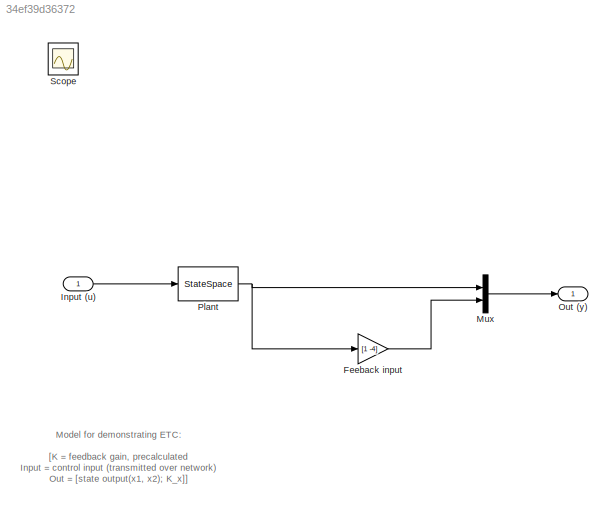
MODEL slx_34ef39d36372
KIND model
CONFIG AbsTol = auto
CONFIG EnableMultiTasking = off
CONFIG FixedStep = 0.01
CONFIG MaxStep = auto
CONFIG MinStep = auto
CONFIG RelTol = 1e-3
CONFIG SampleTimeConstraint = Unconstrained
CONFIG Solver = FixedStepAuto
CONFIG SolverName = FixedStepAuto
CONFIG StartTime = 0.0
CONFIG StopTime = 10.0
BLOCK [Gain] Feeback input
  Gain = [1 -4]
  Multiplication = Matrix(K*u)
  OutDataTypeStr = Inherit: Inherit via internal rule
  ParamDataTypeStr = Inherit: Inherit via internal rule
  SaturateOnIntegerOverflow = off
BLOCK [Inport] Input (u) 
  IconDisplay = Port number
BLOCK [Mux] Mux
  DisplayOption = bar
  Inputs = 2
  Ports = [2, 1]
BLOCK [Outport] Out (y)
  IconDisplay = Port number
BLOCK [StateSpace] Plant
  A = [0 1; -2 3]
  B = [0; 1]
  C = [1 0; 0 1]
  D = [0; 0]
  InitialCondition = [2 3]
  Ports = [1, 1]
BLOCK [Scope] Scope
  Floating = off
  IOType = viewer
  NumInputPorts = 1
  Ports = []
  ScopeSpecificationString = Simulink.scopes.TimeScopeBlockCfg('CurrentConfiguration', extmgr.ConfigurationSet(extmgr.Configuration('Core','General UI',true),extmgr.Configuration('Core','Source UI',true),extmgr.Configuration('Sources','WiredSimulink',true),extmgr.Configuration('Visuals','Time Domain',true,'SerializedDisplays',{struct('MinYLimReal','-12.28174','MaxYLimReal','10.5357','YLabelReal','','MinYLimMag','0.00000','Max...<+1355ch>
ANNOTATION (root): Model for demonstrating ETC: [K = feedback gain, precalculated Input = control input (transmitted over network) Out = [state output(x1, x2); K_x]] The output consists of multiplexed signals composed of the state of the plant, and also the "ideal" feedback input that should be provided at that instant (for data logging purposes)
LINE Feeback input:1 -> Mux:2
LINE Input (u) :1 -> Plant:1
LINE Mux:1 -> Out (y):1
NET Plant:1 -> Feeback input:1, Mux:1
note: NET lines group one-source signal fan-out (src -> all destinations, sorted); 1:1 wires keep LINE
